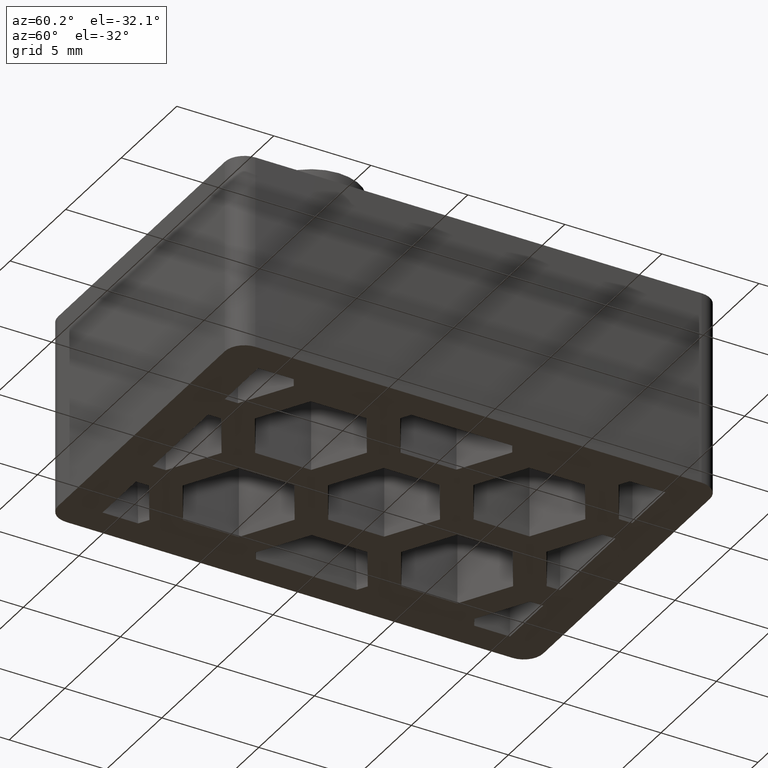
[diagram: clean part render]
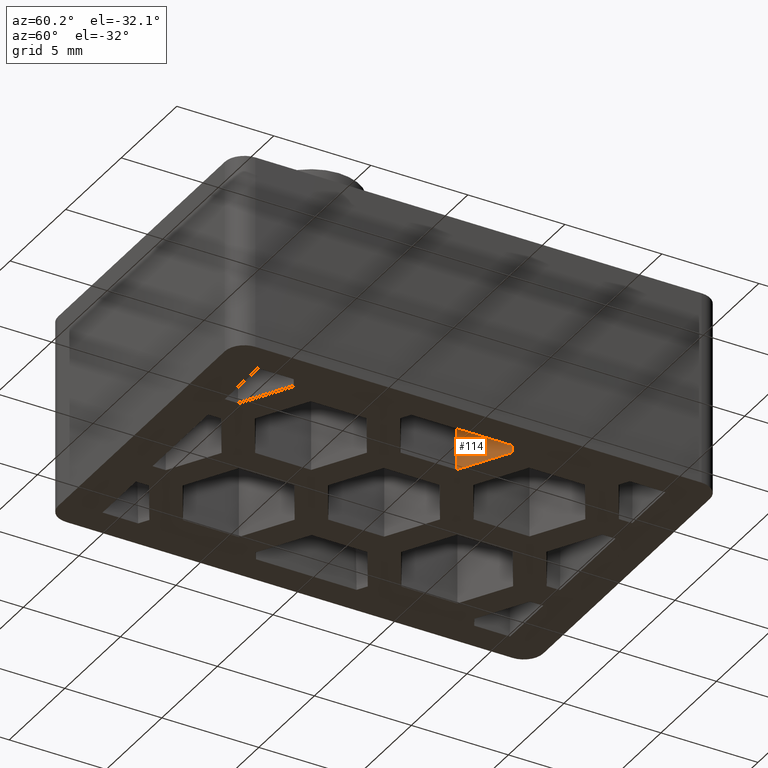
[diagram: same view with one face highlighted and labeled with its STEP entity id]
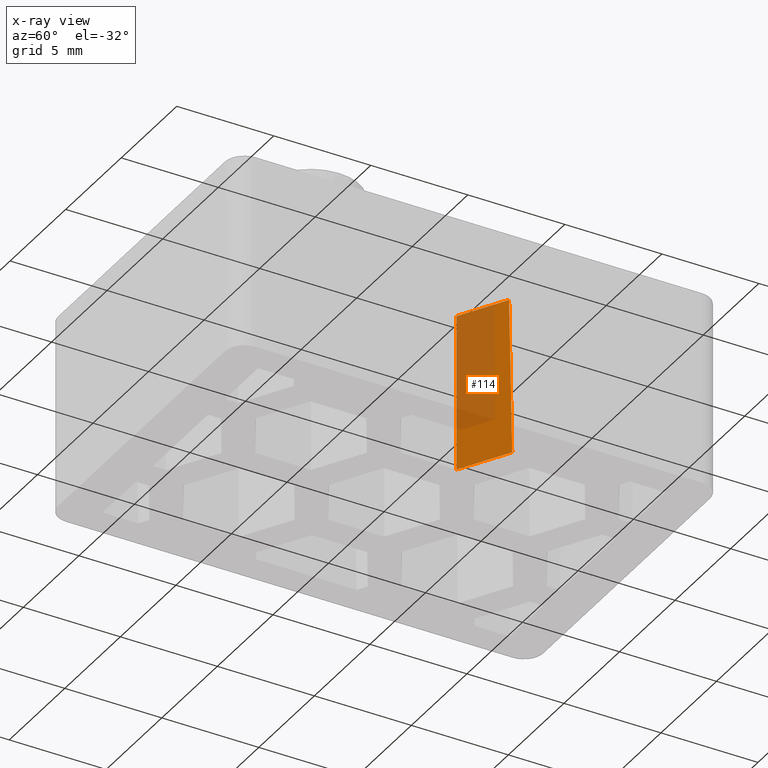
[diagram: x-ray of the same camera — body ghosted, the highlighted face saturated]
A machine part, auxiliary view. The second image highlights one B-rep face of the part: STEP entity #114.
The next image is the same camera in x-ray: the body ghosted, the highlighted face saturated — about 53% of this face is hidden behind the body in this view.
In plain terms, the highlighted planar face has unit normal (-0.4999, 0.8659, 0.0175).
Its self-contained STEP definition (entity closure, byte-faithful):
#114 = ADVANCED_FACE( '', ( #306 ), #307, .F. );
#306 = FACE_OUTER_BOUND( '', #592, .T. );
#307 = PLANE( '', #593 );
#592 = EDGE_LOOP( '', ( #1179, #1180, #1181, #1182 ) );
#593 = AXIS2_PLACEMENT_3D( '', #1183, #1184, #1185 );
#1179 = ORIENTED_EDGE( '', *, *, #1866, .T. );
#1180 = ORIENTED_EDGE( '', *, *, #2043, .F. );
#1181 = ORIENTED_EDGE( '', *, *, #1980, .F. );
#1182 = ORIENTED_EDGE( '', *, *, #2046, .T. );
#1183 = CARTESIAN_POINT( '', ( 1.62500000000000, 0.0721687836487024, -4.41891755019167E-018 ) );
#1184 = DIRECTION( '', ( -0.499923847578196, 0.865893503920754, 0.0174524064372835 ) );
#1185 = DIRECTION( '', ( -0.866025403784438, -0.500000000000000, 2.96370307086826E-017 ) );
#1866 = EDGE_CURVE( '', #2229, #2227, #2230, .T. );
#1980 = EDGE_CURVE( '', #2441, #2443, #2444, .T. );
#2043 = EDGE_CURVE( '', #2443, #2227, #2552, .T. );
#2046 = EDGE_CURVE( '', #2441, #2229, #2555, .T. );
#2227 = VERTEX_POINT( '', #2808 );
#2229 = VERTEX_POINT( '', #2811 );
#2230 = LINE( '', #2812, #2813 );
#2441 = VERTEX_POINT( '', #3124 );
#2443 = VERTEX_POINT( '', #3127 );
#2444 = LINE( '', #3128, #3129 );
#2552 = LINE( '', #3299, #3300 );
#2555 = LINE( '', #3305, #3306 );
#2808 = CARTESIAN_POINT( '', ( 6.50000000000000, 2.88675134594813, -1.76756702007669E-016 ) );
#2811 = CARTESIAN_POINT( '', ( 4.00000000000000, 1.44337567297406, -8.83783510038344E-017 ) );
#2812 = CARTESIAN_POINT( '', ( 6.50000000000000, 2.88675134594813, -1.76756702007669E-016 ) );
#2813 = VECTOR( '', #3602, 1000.00000000000 );
#3124 = CARTESIAN_POINT( '', ( 4.13964051942574, 1.36275418149383, 8.00000000000000 ) );
#3127 = CARTESIAN_POINT( '', ( 6.50000000000000, 2.72550836298767, 8.00000000000000 ) );
#3128 = CARTESIAN_POINT( '', ( 6.56982025971287, 2.76581910872778, 8.00000000000000 ) );
#3129 = VECTOR( '', #3740, 1000.00000000000 );
#3299 = CARTESIAN_POINT( '', ( 6.50000000000000, 2.88560841688873, 0.0567059248553490 ) );
#3300 = VECTOR( '', #3803, 1000.00000000000 );
#3305 = CARTESIAN_POINT( '', ( 4.00050759261547, 1.44308261424088, 0.0290799614642844 ) );
#3306 = VECTOR( '', #3806, 1000.00000000000 );
#3602 = DIRECTION( '', ( 0.866025403784438, 0.500000000000000, -3.06151588455594E-017 ) );
#3740 = DIRECTION( '', ( 0.866025403784438, 0.500000000000000, -3.06151588455594E-017 ) );
#3803 = DIRECTION( '', ( -3.00523943436880E-018, 0.0201512801671579, -0.999796942337605 ) );
#3806 = DIRECTION( '', ( -0.0174515205435363, 0.0100756400835789, -0.999796942337605 ) );